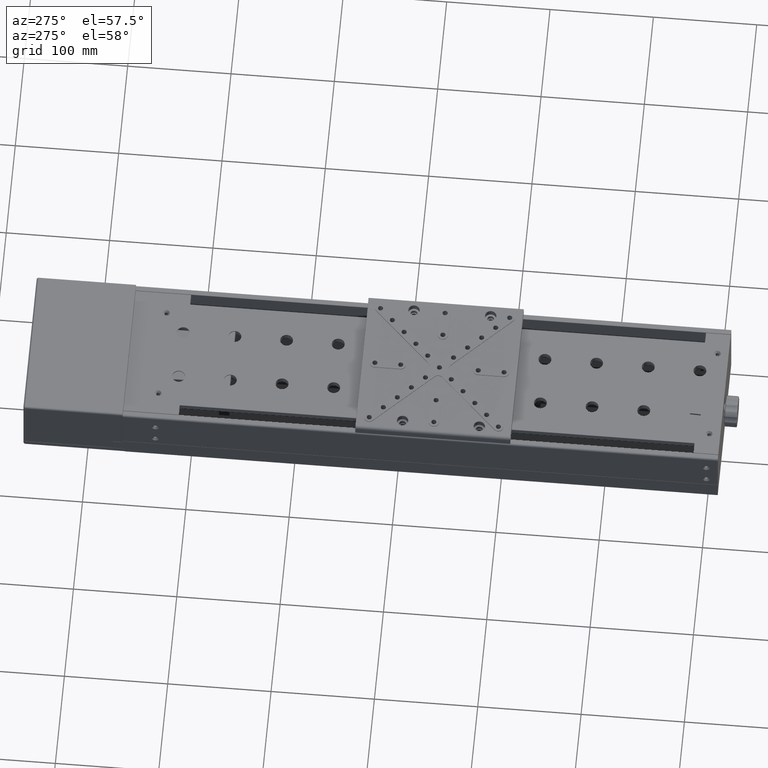
[diagram: clean part render]
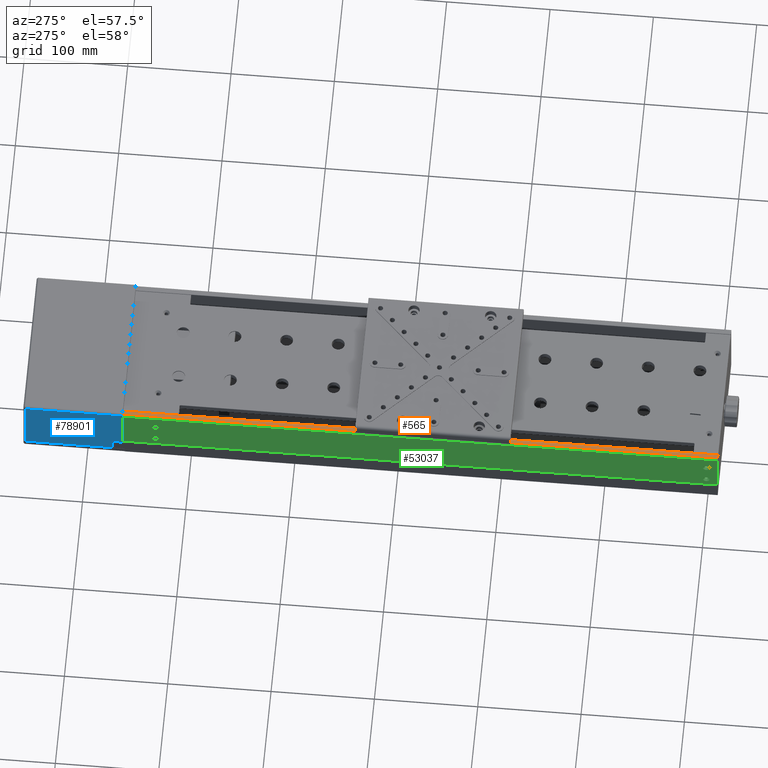
[diagram: same view with three faces highlighted in distinct colors, each labeled with its STEP entity id]
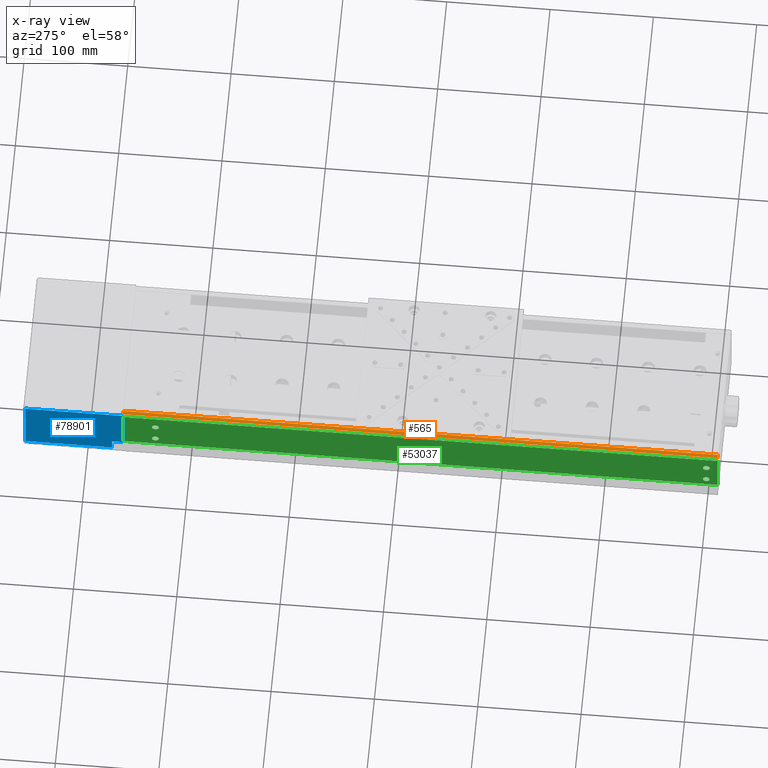
[diagram: x-ray of the same camera — body ghosted, the three highlighted faces saturated]
A machine part, auxiliary view with three faces highlighted in distinct colors.
The next image is the same camera in x-ray (body ghosted, the three faces saturated) — at least one of them is partly hidden behind the body in this view.
Their STEP definitions:

[orange] entity #565 — the highlighted planar face has unit normal (-0, 0, -1).
#77 = ORIENTED_EDGE ( 'NONE', *, *, #42291, .T. ) ;
#565 = ADVANCED_FACE ( 'NONE', ( #7480 ), #40776, .F. ) ;
#2393 = ORIENTED_EDGE ( 'NONE', *, *, #61694, .T. ) ;
#5467 = CARTESIAN_POINT ( 'NONE',  ( -139.7854323028808210, 465.8311902418279828, 41.04665025355579644 ) ) ;
#7480 = FACE_OUTER_BOUND ( 'NONE', #36796, .T. ) ;
#8322 = VECTOR ( 'NONE', #72368, 1000.000000000000000 ) ;
#11636 = EDGE_CURVE ( 'NONE', #21351, #55088, #60325, .T. ) ;
#15520 = CARTESIAN_POINT ( 'NONE',  ( -145.5854323028810029, -109.7688097581719973, 41.04665025355554775 ) ) ;
#16592 = DIRECTION ( 'NONE',  ( 2.352436789038279947E-18, -1.000000000000000000, -4.024558464266189994E-16 ) ) ;
#16733 = VERTEX_POINT ( 'NONE', #61184 ) ;
#18122 = VECTOR ( 'NONE', #43360, 1000.000000000000000 ) ;
#21351 = VERTEX_POINT ( 'NONE', #40083 ) ;
#21374 = LINE ( 'NONE', #46062, #8322 ) ;
#28959 = EDGE_CURVE ( 'NONE', #55088, #41734, #47896, .T. ) ;
#35656 = DIRECTION ( 'NONE',  ( 1.000000000000000000, -8.203130022076389420E-17, -1.386815334662471882E-16 ) ) ;
#36796 = EDGE_LOOP ( 'NONE', ( #2393, #43894, #38603, #77 ) ) ;
#38603 = ORIENTED_EDGE ( 'NONE', *, *, #28959, .T. ) ;
#39982 = CARTESIAN_POINT ( 'NONE',  ( -145.5854323028810029, -109.9688097581720001, 41.04665025355554775 ) ) ;
#40083 = CARTESIAN_POINT ( 'NONE',  ( -143.5854323028810029, -109.7688097581719973, 41.04665025355554775 ) ) ;
#40776 = PLANE ( 'NONE',  #56856 ) ;
#41734 = VERTEX_POINT ( 'NONE', #5467 ) ;
#42291 = EDGE_CURVE ( 'NONE', #41734, #16733, #21374, .T. ) ;
#42517 = CARTESIAN_POINT ( 'NONE',  ( -143.5854323028810029, -109.9688097581720001, 41.04665025355554775 ) ) ;
#43360 = DIRECTION ( 'NONE',  ( -2.352436789038279947E-18, 1.000000000000000000, 4.024558464266189994E-16 ) ) ;
#43894 = ORIENTED_EDGE ( 'NONE', *, *, #11636, .T. ) ;
#46062 = CARTESIAN_POINT ( 'NONE',  ( -145.5854323028810029, 465.8311902418279828, 41.04665025355579644 ) ) ;
#47896 = LINE ( 'NONE', #67628, #18122 ) ;
#53716 = VECTOR ( 'NONE', #16592, 1000.000000000000000 ) ;
#54857 = LINE ( 'NONE', #42517, #53716 ) ;
#55088 = VERTEX_POINT ( 'NONE', #58066 ) ;
#56856 = AXIS2_PLACEMENT_3D ( 'NONE', #39982, #65081, #71657 ) ;
#57703 = VECTOR ( 'NONE', #35656, 1000.000000000000000 ) ;
#58066 = CARTESIAN_POINT ( 'NONE',  ( -139.7854323028808210, -109.7688097581719973, 41.04665025355554775 ) ) ;
#60325 = LINE ( 'NONE', #15520, #57703 ) ;
#61184 = CARTESIAN_POINT ( 'NONE',  ( -143.5854323028810029, 465.8311902418279828, 41.04665025355579644 ) ) ;
#61694 = EDGE_CURVE ( 'NONE', #16733, #21351, #54857, .T. ) ;
#65081 = DIRECTION ( 'NONE',  ( -1.386815334662471882E-16, 3.538835890992684993E-16, -1.000000000000000000 ) ) ;
#67628 = CARTESIAN_POINT ( 'NONE',  ( -139.7854323028808210, -109.9688097581720001, 41.04665025355554775 ) ) ;
#71657 = DIRECTION ( 'NONE',  ( -1.000000000000000000, 0.000000000000000000, 1.386815334662471882E-16 ) ) ;
#72368 = DIRECTION ( 'NONE',  ( -1.000000000000000000, 8.203130022076389420E-17, 1.386815334662471882E-16 ) ) ;

[blue] entity #78901 — the highlighted planar face has unit normal (1, 0, 0).
#842 = CARTESIAN_POINT ( 'NONE',  ( -145.5854323028810029, 466.2311902418280170, 43.24665025355560033 ) ) ;
#855 = CARTESIAN_POINT ( 'NONE',  ( -145.5854323028808324, 466.0311902418279715, -16.75334974644439967 ) ) ;
#1269 = EDGE_CURVE ( 'NONE', #51085, #20869, #31589, .T. ) ;
#3344 = DIRECTION ( 'NONE',  ( 1.110223024625153829E-16, -1.000000000000000000, 1.321861075272959876E-16 ) ) ;
#3772 = DIRECTION ( 'NONE',  ( 3.262550879872249964E-16, -1.768050279409980118E-18, -1.000000000000000000 ) ) ;
#5924 = CARTESIAN_POINT ( 'NONE',  ( -145.5854323028808324, 466.2311902418280170, -5.753349746444399671 ) ) ;
#7043 = ORIENTED_EDGE ( 'NONE', *, *, #23453, .T. ) ;
#7305 = VECTOR ( 'NONE', #70956, 1000.000000000000000 ) ;
#8994 = PLANE ( 'NONE',  #75161 ) ;
#9725 = DIRECTION ( 'NONE',  ( -3.262550879872249964E-16, 1.768050279409980118E-18, 1.000000000000000000 ) ) ;
#14875 = VECTOR ( 'NONE', #3344, 1000.000000000000000 ) ;
#15461 = VERTEX_POINT ( 'NONE', #5924 ) ;
#15883 = CARTESIAN_POINT ( 'NONE',  ( -145.5854323028810029, 476.2311902418280170, 43.24665025355560033 ) ) ;
#20869 = VERTEX_POINT ( 'NONE', #32819 ) ;
#20990 = EDGE_CURVE ( 'NONE', #56657, #72585, #40976, .T. ) ;
#23081 = ORIENTED_EDGE ( 'NONE', *, *, #72413, .T. ) ;
#23453 = EDGE_CURVE ( 'NONE', #15461, #51085, #63370, .T. ) ;
#27958 = DIRECTION ( 'NONE',  ( 1.000000000000000000, 2.220446049250309876E-16, 3.262550879872249964E-16 ) ) ;
#31589 = LINE ( 'NONE', #77140, #7305 ) ;
#32819 = CARTESIAN_POINT ( 'NONE',  ( -145.5854323028810029, 560.0311902418279715, 41.24665025355555059 ) ) ;
#34112 = CARTESIAN_POINT ( 'NONE',  ( -145.5854323028810029, 466.0311902418279715, 43.24665025355560033 ) ) ;
#34815 = DIRECTION ( 'NONE',  ( -3.262550879872249964E-16, -3.136362180800094826E-16, 1.000000000000000000 ) ) ;
#35875 = EDGE_CURVE ( 'NONE', #72585, #15461, #46950, .T. ) ;
#40271 = FACE_OUTER_BOUND ( 'NONE', #72229, .T. ) ;
#40976 = LINE ( 'NONE', #15883, #67286 ) ;
#41303 = VECTOR ( 'NONE', #3772, 1000.000000000000000 ) ;
#43233 = EDGE_CURVE ( 'NONE', #20869, #54796, #46972, .T. ) ;
#46813 = ORIENTED_EDGE ( 'NONE', *, *, #1269, .T. ) ;
#46950 = LINE ( 'NONE', #59703, #14875 ) ;
#46972 = LINE ( 'NONE', #47377, #41303 ) ;
#47377 = CARTESIAN_POINT ( 'NONE',  ( -145.5854323028810029, 560.0311902418279715, 43.24665025355555059 ) ) ;
#47638 = VECTOR ( 'NONE', #75762, 1000.000000000000000 ) ;
#49150 = ORIENTED_EDGE ( 'NONE', *, *, #35875, .T. ) ;
#49458 = ORIENTED_EDGE ( 'NONE', *, *, #43233, .T. ) ;
#50635 = LINE ( 'NONE', #855, #47638 ) ;
#51085 = VERTEX_POINT ( 'NONE', #53813 ) ;
#53813 = CARTESIAN_POINT ( 'NONE',  ( -145.5854323028810029, 466.2311902418280170, 41.24665025355555059 ) ) ;
#53907 = CARTESIAN_POINT ( 'NONE',  ( -145.5854323028808324, 476.2311902418280170, -16.75334974644439967 ) ) ;
#54796 = VERTEX_POINT ( 'NONE', #71033 ) ;
#56657 = VERTEX_POINT ( 'NONE', #53907 ) ;
#59182 = DIRECTION ( 'NONE',  ( -3.262550879872249964E-16, 0.000000000000000000, 1.000000000000000000 ) ) ;
#59703 = CARTESIAN_POINT ( 'NONE',  ( -145.5854323028808324, 466.0311902418279715, -5.753349746444399671 ) ) ;
#63370 = LINE ( 'NONE', #842, #70691 ) ;
#67286 = VECTOR ( 'NONE', #34815, 1000.000000000000000 ) ;
#70691 = VECTOR ( 'NONE', #9725, 1000.000000000000000 ) ;
#70910 = ORIENTED_EDGE ( 'NONE', *, *, #20990, .T. ) ;
#70956 = DIRECTION ( 'NONE',  ( -1.110223024625153829E-16, 1.000000000000000000, -1.321861075272959876E-16 ) ) ;
#71033 = CARTESIAN_POINT ( 'NONE',  ( -145.5854323028808324, 560.0311902418279715, -16.75334974644439967 ) ) ;
#72229 = EDGE_LOOP ( 'NONE', ( #49150, #7043, #46813, #49458, #23081, #70910 ) ) ;
#72413 = EDGE_CURVE ( 'NONE', #54796, #56657, #50635, .T. ) ;
#72585 = VERTEX_POINT ( 'NONE', #76981 ) ;
#75161 = AXIS2_PLACEMENT_3D ( 'NONE', #34112, #27958, #59182 ) ;
#75762 = DIRECTION ( 'NONE',  ( 1.110223024625153829E-16, -1.000000000000000000, 1.321861075272959876E-16 ) ) ;
#76981 = CARTESIAN_POINT ( 'NONE',  ( -145.5854323028808324, 476.2311902418280170, -5.753349746444399671 ) ) ;
#77140 = CARTESIAN_POINT ( 'NONE',  ( -145.5854323028810029, 562.0311902418279715, 41.24665025355555059 ) ) ;
#78901 = ADVANCED_FACE ( 'NONE', ( #40271 ), #8994, .F. ) ;

[green] entity #53037 — the highlighted planar face has unit normal (-1, -0, 0).
#75 = CIRCLE ( 'NONE', #59209, 3.359999999999974118 ) ;
#82 = DIRECTION ( 'NONE',  ( 2.352436789038279947E-18, -1.000000000000000000, -4.024558464266189994E-16 ) ) ;
#217 = CARTESIAN_POINT ( 'NONE',  ( -145.5854323028810029, -98.96880975817209958, 25.04665025355554775 ) ) ;
#295 = VERTEX_POINT ( 'NONE', #72960 ) ;
#805 = CARTESIAN_POINT ( 'NONE',  ( -145.5854323028810029, -109.7688097581719973, 39.04665025355554775 ) ) ;
#2481 = FACE_OUTER_BOUND ( 'NONE', #32862, .T. ) ;
#4511 = EDGE_CURVE ( 'NONE', #59252, #73595, #73539, .T. ) ;
#6138 = DIRECTION ( 'NONE',  ( 5.546297892530918665E-17, -2.314189091845334991E-16, 1.000000000000000000 ) ) ;
#7748 = EDGE_CURVE ( 'NONE', #26607, #42077, #75, .T. ) ;
#7837 = CARTESIAN_POINT ( 'NONE',  ( -145.5854323028810029, -109.9688097581720001, -3.953349746444434931 ) ) ;
#9022 = AXIS2_PLACEMENT_3D ( 'NONE', #53954, #41614, #17333 ) ;
#11223 = CARTESIAN_POINT ( 'NONE',  ( -145.5854323028810029, -109.7688097581719973, -3.753349746444455182 ) ) ;
#12638 = VECTOR ( 'NONE', #62270, 1000.000000000000000 ) ;
#14335 = DIRECTION ( 'NONE',  ( -1.000000000000000000, -7.159943803225059611E-32, 1.386815334662471882E-16 ) ) ;
#14421 = FACE_BOUND ( 'NONE', #66351, .T. ) ;
#14632 = AXIS2_PLACEMENT_3D ( 'NONE', #7837, #27602, #52652 ) ;
#14831 = FACE_BOUND ( 'NONE', #36220, .T. ) ;
#15471 = CARTESIAN_POINT ( 'NONE',  ( -145.5854323028810029, -109.7688097581719973, 39.04665025355554775 ) ) ;
#17333 = DIRECTION ( 'NONE',  ( 0.000000000000000000, 1.000000000000000000, 0.000000000000000000 ) ) ;
#17383 = DIRECTION ( 'NONE',  ( -1.000000000000000000, -7.159943803225119823E-32, 1.386815334662471882E-16 ) ) ;
#17717 = CARTESIAN_POINT ( 'NONE',  ( -145.5854323028810029, 430.8711902418280033, 5.046650253555779564 ) ) ;
#20245 = CARTESIAN_POINT ( 'NONE',  ( -145.5854323028810029, 465.8311902418279828, -3.753349746444225143 ) ) ;
#20916 = ORIENTED_EDGE ( 'NONE', *, *, #69737, .T. ) ;
#21483 = DIRECTION ( 'NONE',  ( -1.000000000000000000, 0.000000000000000000, 1.386815334662471882E-16 ) ) ;
#23263 = EDGE_CURVE ( 'NONE', #295, #44119, #60142, .T. ) ;
#23616 = AXIS2_PLACEMENT_3D ( 'NONE', #38624, #14335, #52162 ) ;
#23920 = DIRECTION ( 'NONE',  ( 0.000000000000000000, 1.000000000000000000, 0.000000000000000000 ) ) ;
#24742 = DIRECTION ( 'NONE',  ( -1.000000000000000000, 0.000000000000000000, 1.386815334662471882E-16 ) ) ;
#24927 = AXIS2_PLACEMENT_3D ( 'NONE', #58115, #21483, #71280 ) ;
#25334 = EDGE_CURVE ( 'NONE', #44119, #295, #78104, .T. ) ;
#25767 = CARTESIAN_POINT ( 'NONE',  ( -145.5854323028810029, 437.5911902418280306, 5.046650253555779564 ) ) ;
#26607 = VERTEX_POINT ( 'NONE', #25767 ) ;
#27602 = DIRECTION ( 'NONE',  ( -1.000000000000000000, -2.352436789038334643E-18, 1.386815334662471882E-16 ) ) ;
#28422 = LINE ( 'NONE', #77399, #44853 ) ;
#29271 = EDGE_CURVE ( 'NONE', #37683, #59621, #54947, .T. ) ;
#29321 = CARTESIAN_POINT ( 'NONE',  ( -145.5854323028810029, -95.60880975817200067, 5.046650253555569954 ) ) ;
#30853 = ORIENTED_EDGE ( 'NONE', *, *, #67656, .F. ) ;
#31609 = CARTESIAN_POINT ( 'NONE',  ( -145.5854323028810029, 437.5911902418280306, 25.04665025355579644 ) ) ;
#32862 = EDGE_LOOP ( 'NONE', ( #64016, #62379, #69121, #20916 ) ) ;
#32922 = ORIENTED_EDGE ( 'NONE', *, *, #25334, .F. ) ;
#33242 = EDGE_CURVE ( 'NONE', #34584, #80863, #68389, .T. ) ;
#34225 = ORIENTED_EDGE ( 'NONE', *, *, #7748, .F. ) ;
#34584 = VERTEX_POINT ( 'NONE', #20245 ) ;
#34645 = DIRECTION ( 'NONE',  ( 0.000000000000000000, 1.000000000000000000, 5.162867488026251550E-16 ) ) ;
#35550 = CARTESIAN_POINT ( 'NONE',  ( -145.5854323028810029, 465.8311902418279828, 39.04665025355579644 ) ) ;
#36220 = EDGE_LOOP ( 'NONE', ( #30853, #57200 ) ) ;
#37547 = DIRECTION ( 'NONE',  ( 0.000000000000000000, 1.000000000000000000, 5.162867488026251550E-16 ) ) ;
#37683 = VERTEX_POINT ( 'NONE', #51390 ) ;
#38284 = CARTESIAN_POINT ( 'NONE',  ( -145.5854323028810029, -102.3288097581719853, 5.046650253555569954 ) ) ;
#38624 = CARTESIAN_POINT ( 'NONE',  ( -145.5854323028810029, -98.96880975817198589, 5.046650253555569954 ) ) ;
#39113 = PLANE ( 'NONE',  #14632 ) ;
#39355 = CIRCLE ( 'NONE', #52422, 3.360000000000002096 ) ;
#39805 = AXIS2_PLACEMENT_3D ( 'NONE', #54765, #78690, #34645 ) ;
#41614 = DIRECTION ( 'NONE',  ( -1.000000000000000000, 0.000000000000000000, 1.386815334662471882E-16 ) ) ;
#42077 = VERTEX_POINT ( 'NONE', #17717 ) ;
#44119 = VERTEX_POINT ( 'NONE', #54977 ) ;
#44514 = CARTESIAN_POINT ( 'NONE',  ( -145.5854323028810029, -98.96880975817198589, 5.046650253555569954 ) ) ;
#44574 = CIRCLE ( 'NONE', #24927, 3.359999999999974118 ) ;
#44853 = VECTOR ( 'NONE', #72406, 1000.000000000000000 ) ;
#44990 = EDGE_LOOP ( 'NONE', ( #34225, #49204 ) ) ;
#46759 = EDGE_CURVE ( 'NONE', #78038, #62989, #81225, .T. ) ;
#49003 = VECTOR ( 'NONE', #82, 1000.000000000000000 ) ;
#49204 = ORIENTED_EDGE ( 'NONE', *, *, #72316, .F. ) ;
#50409 = DIRECTION ( 'NONE',  ( -1.000000000000000000, 0.000000000000000000, 1.386815334662471882E-16 ) ) ;
#50979 = LINE ( 'NONE', #805, #71502 ) ;
#51087 = DIRECTION ( 'NONE',  ( -1.000000000000000000, -7.159943803225059611E-32, 1.386815334662471882E-16 ) ) ;
#51390 = CARTESIAN_POINT ( 'NONE',  ( -145.5854323028810029, 430.8711902418280033, 25.04665025355579644 ) ) ;
#52162 = DIRECTION ( 'NONE',  ( 0.000000000000000000, 1.000000000000000000, 5.162867488026208163E-16 ) ) ;
#52422 = AXIS2_PLACEMENT_3D ( 'NONE', #44514, #51087, #68805 ) ;
#52652 = DIRECTION ( 'NONE',  ( -2.352436789038334643E-18, 1.000000000000000000, 0.000000000000000000 ) ) ;
#53037 = ADVANCED_FACE ( 'NONE', ( #58837, #14831, #65427, #14421, #2481 ), #39113, .T. ) ;
#53098 = AXIS2_PLACEMENT_3D ( 'NONE', #217, #50409, #75542 ) ;
#53954 = CARTESIAN_POINT ( 'NONE',  ( -145.5854323028810029, 434.2311902418280170, 25.04665025355579644 ) ) ;
#54765 = CARTESIAN_POINT ( 'NONE',  ( -145.5854323028810029, 434.2311902418280170, 5.046650253555779564 ) ) ;
#54947 = CIRCLE ( 'NONE', #9022, 3.359999999999974118 ) ;
#54977 = CARTESIAN_POINT ( 'NONE',  ( -145.5854323028810029, -102.3288097581719853, 25.04665025355554775 ) ) ;
#55433 = EDGE_CURVE ( 'NONE', #80863, #78038, #50979, .T. ) ;
#56787 = CARTESIAN_POINT ( 'NONE',  ( -145.5854323028810029, -98.96880975817209958, 25.04665025355554775 ) ) ;
#57200 = ORIENTED_EDGE ( 'NONE', *, *, #4511, .F. ) ;
#58115 = CARTESIAN_POINT ( 'NONE',  ( -145.5854323028810029, 434.2311902418280170, 25.04665025355579644 ) ) ;
#58837 = FACE_BOUND ( 'NONE', #78711, .T. ) ;
#59209 = AXIS2_PLACEMENT_3D ( 'NONE', #79966, #17383, #37547 ) ;
#59252 = VERTEX_POINT ( 'NONE', #38284 ) ;
#59621 = VERTEX_POINT ( 'NONE', #31609 ) ;
#60142 = CIRCLE ( 'NONE', #79924, 3.360000000000002096 ) ;
#61980 = EDGE_CURVE ( 'NONE', #59621, #37683, #44574, .T. ) ;
#62270 = DIRECTION ( 'NONE',  ( -2.352436789038279947E-18, 1.000000000000000000, 4.024558464266189994E-16 ) ) ;
#62379 = ORIENTED_EDGE ( 'NONE', *, *, #55433, .T. ) ;
#62989 = VERTEX_POINT ( 'NONE', #35550 ) ;
#64016 = ORIENTED_EDGE ( 'NONE', *, *, #33242, .T. ) ;
#64827 = ORIENTED_EDGE ( 'NONE', *, *, #29271, .F. ) ;
#65427 = FACE_BOUND ( 'NONE', #44990, .T. ) ;
#66351 = EDGE_LOOP ( 'NONE', ( #72835, #64827 ) ) ;
#67571 = CARTESIAN_POINT ( 'NONE',  ( -145.5854323028810029, -109.9688097581720001, -3.753349746444455182 ) ) ;
#67656 = EDGE_CURVE ( 'NONE', #73595, #59252, #39355, .T. ) ;
#68389 = LINE ( 'NONE', #67571, #49003 ) ;
#68805 = DIRECTION ( 'NONE',  ( 0.000000000000000000, 1.000000000000000000, 5.162867488026208163E-16 ) ) ;
#69121 = ORIENTED_EDGE ( 'NONE', *, *, #46759, .T. ) ;
#69641 = ORIENTED_EDGE ( 'NONE', *, *, #23263, .F. ) ;
#69737 = EDGE_CURVE ( 'NONE', #62989, #34584, #28422, .T. ) ;
#71280 = DIRECTION ( 'NONE',  ( 0.000000000000000000, 1.000000000000000000, 0.000000000000000000 ) ) ;
#71502 = VECTOR ( 'NONE', #6138, 1000.000000000000000 ) ;
#72316 = EDGE_CURVE ( 'NONE', #42077, #26607, #75292, .T. ) ;
#72406 = DIRECTION ( 'NONE',  ( -5.546297892530918665E-17, 3.538835890992684993E-16, -1.000000000000000000 ) ) ;
#72835 = ORIENTED_EDGE ( 'NONE', *, *, #61980, .F. ) ;
#72960 = CARTESIAN_POINT ( 'NONE',  ( -145.5854323028810029, -95.60880975817211436, 25.04665025355554775 ) ) ;
#73539 = CIRCLE ( 'NONE', #23616, 3.360000000000002096 ) ;
#73595 = VERTEX_POINT ( 'NONE', #29321 ) ;
#75058 = CARTESIAN_POINT ( 'NONE',  ( -145.5854323028810029, 466.0311902418279715, 39.04665025355579644 ) ) ;
#75292 = CIRCLE ( 'NONE', #39805, 3.359999999999974118 ) ;
#75542 = DIRECTION ( 'NONE',  ( 0.000000000000000000, 1.000000000000000000, 0.000000000000000000 ) ) ;
#77399 = CARTESIAN_POINT ( 'NONE',  ( -145.5854323028810029, 465.8311902418279828, -3.953349746444205337 ) ) ;
#78038 = VERTEX_POINT ( 'NONE', #15471 ) ;
#78104 = CIRCLE ( 'NONE', #53098, 3.360000000000002096 ) ;
#78690 = DIRECTION ( 'NONE',  ( -1.000000000000000000, -7.159943803225119823E-32, 1.386815334662471882E-16 ) ) ;
#78711 = EDGE_LOOP ( 'NONE', ( #69641, #32922 ) ) ;
#79924 = AXIS2_PLACEMENT_3D ( 'NONE', #56787, #24742, #23920 ) ;
#79966 = CARTESIAN_POINT ( 'NONE',  ( -145.5854323028810029, 434.2311902418280170, 5.046650253555779564 ) ) ;
#80863 = VERTEX_POINT ( 'NONE', #11223 ) ;
#81225 = LINE ( 'NONE', #75058, #12638 ) ;